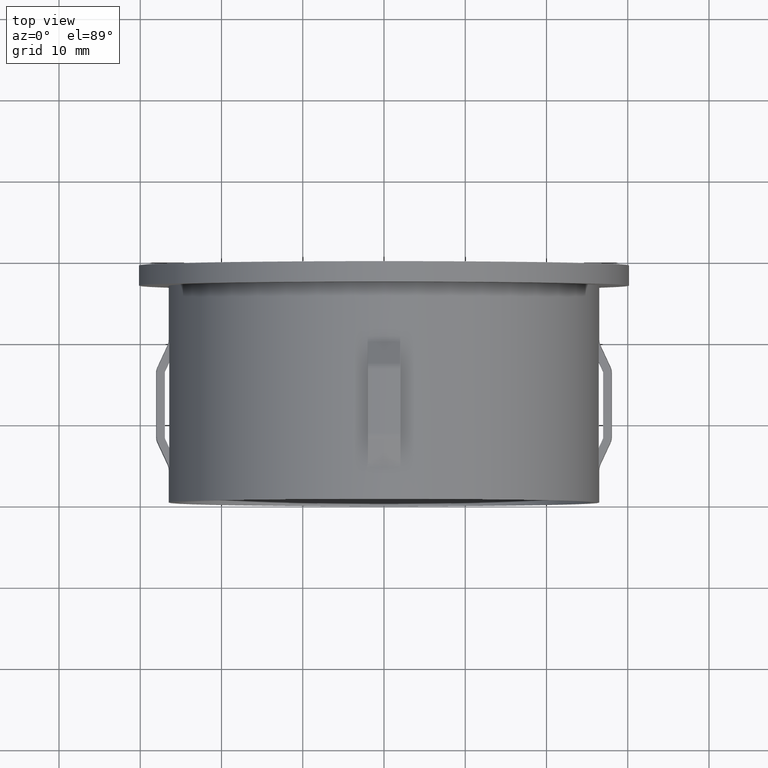
[diagram: clean part render]
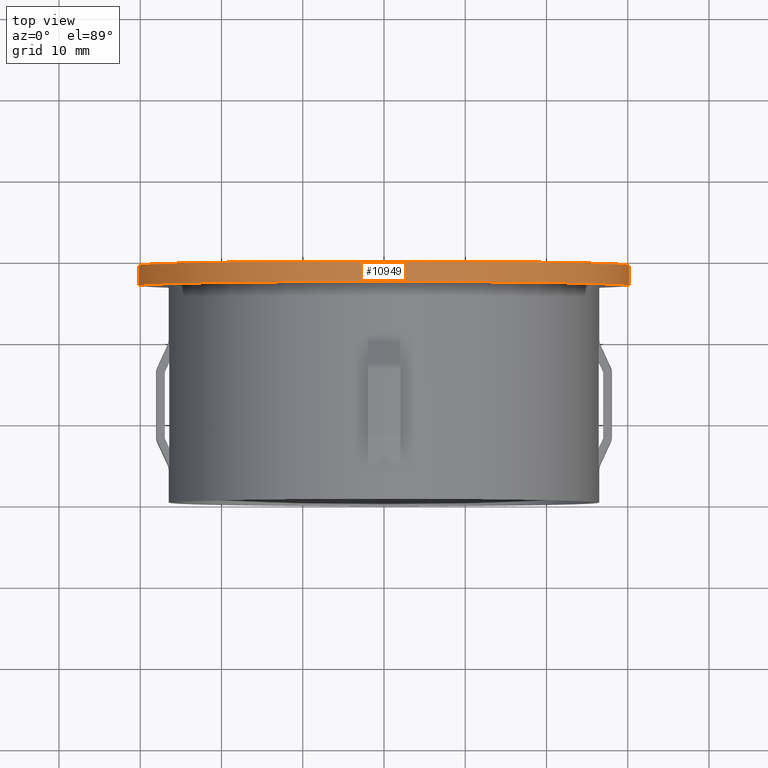
[diagram: same view with one face highlighted and labeled with its STEP entity id]
A machine part, top view. The second image highlights one B-rep face of the part: STEP entity #10949.
In plain terms, the highlighted cylindrical surface (partial cylindrical patch) has radius 30.15 mm, axis along (-0, 1, -0).
Its self-contained STEP definition (entity closure, byte-faithful):
#270 = EDGE_CURVE ( 'NONE', #12256, #9884, #363, .T. ) ;
#363 = CIRCLE ( 'NONE', #3395, 30.14999999999999900 ) ;
#402 = AXIS2_PLACEMENT_3D ( 'NONE', #11491, #6032, #1747 ) ;
#434 = AXIS2_PLACEMENT_3D ( 'NONE', #4139, #5323, #13829 ) ;
#719 = DIRECTION ( 'NONE',  ( -1.224646799147353200E-016, 1.000000000000000000, -0.0000000000000000000 ) ) ;
#1035 = VECTOR ( 'NONE', #4358, 1000.000000000000000 ) ;
#1079 = CARTESIAN_POINT ( 'NONE',  ( 30.15000000000000200, 29.19999999999999900, 3.692310099429270400E-015 ) ) ;
#1693 = DIRECTION ( 'NONE',  ( -1.224646799147353200E-016, 1.000000000000000000, -0.0000000000000000000 ) ) ;
#1747 = DIRECTION ( 'NONE',  ( -1.000000000000000000, -1.150728673948131100E-016, 0.0000000000000000000 ) ) ;
#1782 = CARTESIAN_POINT ( 'NONE',  ( -1.224646799147349800E-016, 29.19999999999999600, 0.0000000000000000000 ) ) ;
#2439 = ORIENTED_EDGE ( 'NONE', *, *, #3450, .T. ) ;
#2885 = CYLINDRICAL_SURFACE ( 'NONE', #402, 30.14999999999999500 ) ;
#3395 = AXIS2_PLACEMENT_3D ( 'NONE', #1782, #719, #6093 ) ;
#3450 = EDGE_CURVE ( 'NONE', #3780, #9894, #4461, .T. ) ;
#3780 = VERTEX_POINT ( 'NONE', #10469 ) ;
#3908 = FACE_OUTER_BOUND ( 'NONE', #8058, .T. ) ;
#4022 = ORIENTED_EDGE ( 'NONE', *, *, #270, .F. ) ;
#4139 = CARTESIAN_POINT ( 'NONE',  ( 1.836970198721031900E-016, 26.69999999999999900, 0.0000000000000000000 ) ) ;
#4358 = DIRECTION ( 'NONE',  ( -1.224646799147353200E-016, 1.000000000000000000, -0.0000000000000000000 ) ) ;
#4461 = CIRCLE ( 'NONE', #434, 30.14999999999999500 ) ;
#4840 = EDGE_CURVE ( 'NONE', #9894, #9884, #12996, .T. ) ;
#5117 = ORIENTED_EDGE ( 'NONE', *, *, #4840, .T. ) ;
#5323 = DIRECTION ( 'NONE',  ( -1.224646799147353200E-016, 1.000000000000000000, -0.0000000000000000000 ) ) ;
#5387 = CARTESIAN_POINT ( 'NONE',  ( 30.14999999999999500, 29.20000000000000300, 3.692310099429269600E-015 ) ) ;
#6032 = DIRECTION ( 'NONE',  ( -1.224646799147353200E-016, 1.000000000000000000, -0.0000000000000000000 ) ) ;
#6093 = DIRECTION ( 'NONE',  ( -1.000000000000000000, -1.150728673948130800E-016, 0.0000000000000000000 ) ) ;
#6409 = CARTESIAN_POINT ( 'NONE',  ( 30.14999999999999500, 26.70000000000000300, 3.692310099429269600E-015 ) ) ;
#6928 = CARTESIAN_POINT ( 'NONE',  ( -30.14999999999999500, 29.19999999999999600, 0.0000000000000000000 ) ) ;
#8058 = EDGE_LOOP ( 'NONE', ( #2439, #5117, #4022, #9237 ) ) ;
#8227 = EDGE_CURVE ( 'NONE', #3780, #12256, #11234, .T. ) ;
#9237 = ORIENTED_EDGE ( 'NONE', *, *, #8227, .F. ) ;
#9884 = VERTEX_POINT ( 'NONE', #1079 ) ;
#9894 = VERTEX_POINT ( 'NONE', #6409 ) ;
#10010 = VECTOR ( 'NONE', #1693, 1000.000000000000000 ) ;
#10469 = CARTESIAN_POINT ( 'NONE',  ( -30.14999999999999500, 26.69999999999999600, 0.0000000000000000000 ) ) ;
#10949 = ADVANCED_FACE ( 'NONE', ( #3908 ), #2885, .T. ) ;
#11087 = CARTESIAN_POINT ( 'NONE',  ( -30.14999999999999900, 29.19999999999999200, 0.0000000000000000000 ) ) ;
#11234 = LINE ( 'NONE', #6928, #10010 ) ;
#11491 = CARTESIAN_POINT ( 'NONE',  ( -1.224646799147354400E-016, 29.19999999999999900, 0.0000000000000000000 ) ) ;
#12256 = VERTEX_POINT ( 'NONE', #11087 ) ;
#12996 = LINE ( 'NONE', #5387, #1035 ) ;
#13829 = DIRECTION ( 'NONE',  ( -1.000000000000000000, -1.150728673948131100E-016, 0.0000000000000000000 ) ) ;